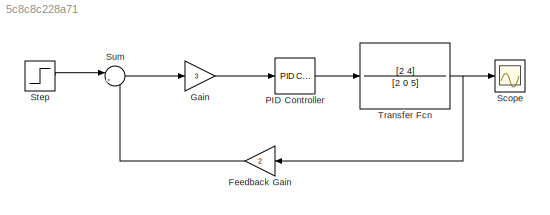
MODEL slx_5c8c8c228a71
KIND model
CONFIG AbsTol = auto
CONFIG EnableMultiTasking = off
CONFIG FixedStep = auto
CONFIG MaxStep = auto
CONFIG MinStep = auto
CONFIG RelTol = 1e-3
CONFIG SampleTimeConstraint = Unconstrained
CONFIG Solver = VariableStepAuto
CONFIG SolverName = VariableStepAuto
CONFIG StartTime = 0.0
CONFIG StopTime = 10.0
BLOCK [Gain] Feedback Gain
  Gain = 2
BLOCK [Gain] Gain
  Gain = 3
BLOCK [Reference] PID Controller  REF=simulink/Continuous/PID Controller
  Ports = [1, 1]
  SourceBlock = simulink/Continuous/PID Controller
  SourceProductBaseCode = SL
  SourceType = PID 1dof
BLOCK [Scope] Scope
  Floating = off
  NumInputPorts = 1
  Ports = [1]
  ScopeSpecificationString = Simulink.scopes.TimeScopeBlockCfg('CurrentConfiguration', extmgr.ConfigurationSet(extmgr.Configuration('Core','General UI',true,'FigureColor',[1 1 1]),extmgr.Configuration('Core','Source UI',true),extmgr.Configuration('Sources','WiredSimulink',true),extmgr.Configuration('Visuals','Time Domain',true,'SerializedDisplays',{struct('MinYLimReal','-0.07288','MaxYLimReal','0.65592','YLabelReal','','MinYL...<+1481ch>
BLOCK [Step] Step
  SampleTime = 0
BLOCK [Sum] Sum
  Inputs = |+-
  NameLocation = top
  Ports = [2, 1]
BLOCK [TransferFcn] Transfer Fcn
  Denominator = [2 0 5]
  Numerator = [2 4]
LINE Feedback Gain:1 -> Sum:2
LINE Gain:1 -> PID Controller:1
LINE PID Controller:1 -> Transfer Fcn:1
LINE Step:1 -> Sum:1
LINE Sum:1 -> Gain:1
NET Transfer Fcn:1 -> Feedback Gain:1, Scope:1
note: NET lines group one-source signal fan-out (src -> all destinations, sorted); 1:1 wires keep LINE
